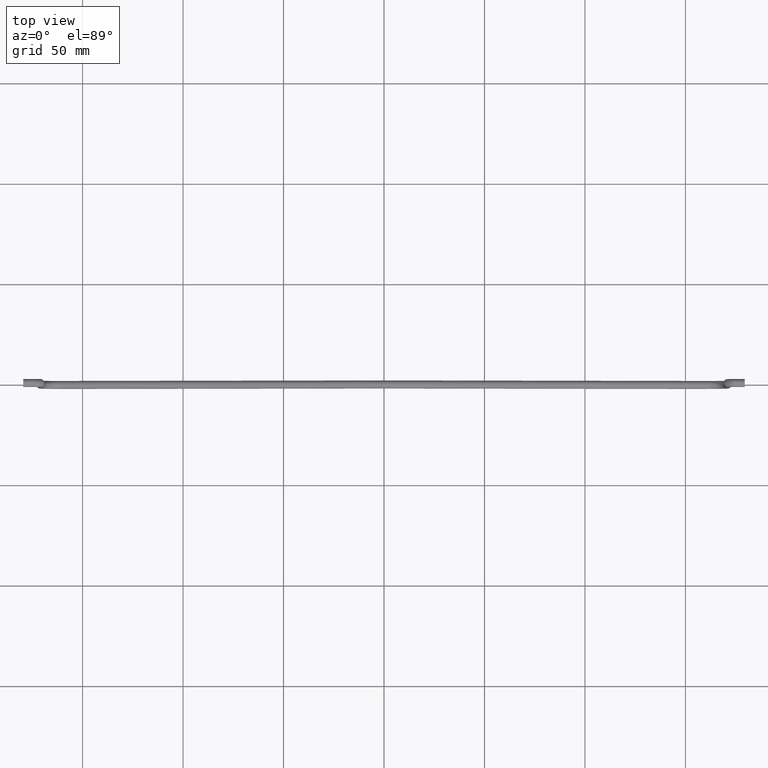
[diagram: clean part render]
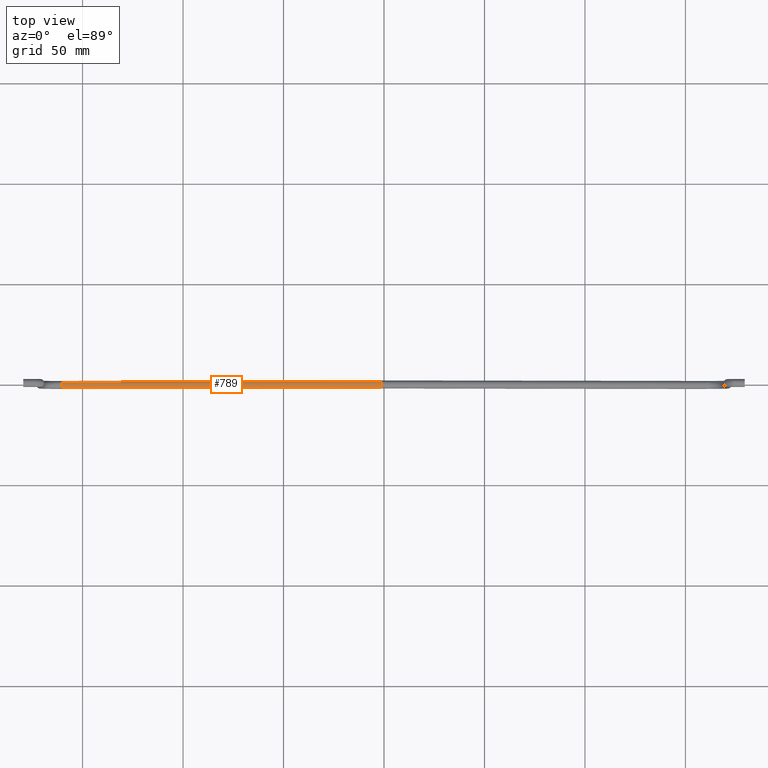
[diagram: same view with one face highlighted and labeled with its STEP entity id]
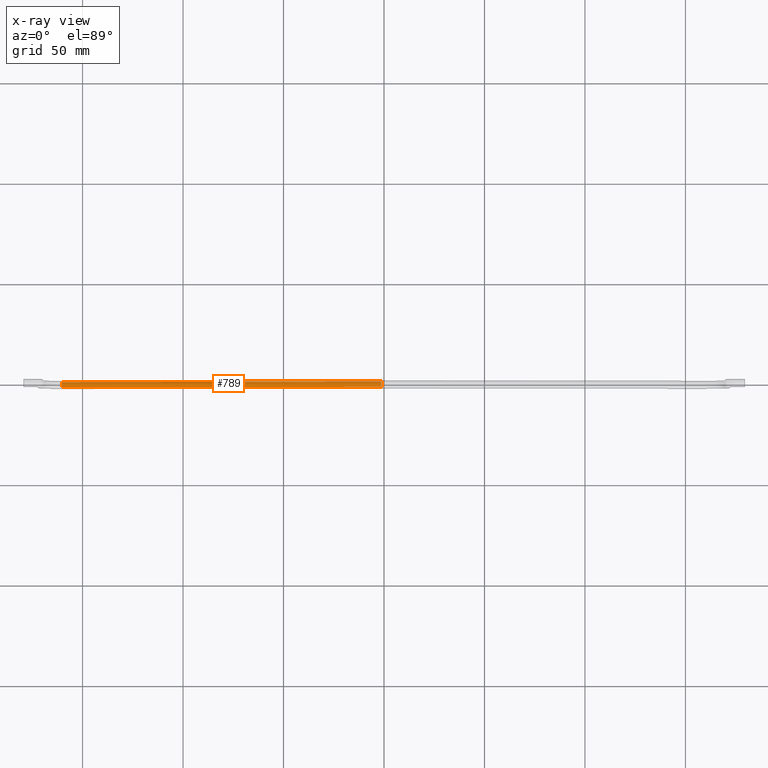
[diagram: x-ray of the same camera — body ghosted, the highlighted face saturated]
A machine part, top view. The second image highlights one B-rep face of the part: STEP entity #789.
The next image is the same camera in x-ray: the body ghosted, the highlighted face saturated — about 0% of this face is hidden behind the body in this view.
In plain terms, the highlighted face is a freeform B-spline surface patch.
Its self-contained STEP definition (entity closure, byte-faithful):
#626=CARTESIAN_POINT('',(-1.359891884382767,-1.216089247245802,-42.463963616226302));
#627=VERTEX_POINT('',#626);
#637=CARTESIAN_POINT('',(-160.266113874835410,-1.216088844176160,-56.380120268141070));
#638=VERTEX_POINT('',#637);
#639=CARTESIAN_POINT('',(-160.266113874835410,-1.216088844176160,-56.380120268141070));
#640=CARTESIAN_POINT('',(-1.359891884382767,-1.216089247245802,-42.463963616226302));
#641=QUASI_UNIFORM_CURVE('',1,(#639,#640),.UNSPECIFIED.,.F.,.U.);
#642=EDGE_CURVE('',#638,#627,#641,.T.);
#678=CARTESIAN_POINT('',(-160.256233778261390,1.351179953291413,-56.492939382871043));
#679=VERTEX_POINT('',#678);
#688=CARTESIAN_POINT('',(-1.350011833700060,1.351179739293265,-42.576782229102307));
#689=VERTEX_POINT('',#688);
#690=CARTESIAN_POINT('',(-160.256233778261390,1.351179953291413,-56.492939382871043));
#691=CARTESIAN_POINT('',(-1.350011833700060,1.351179739293265,-42.576782229102307));
#692=QUASI_UNIFORM_CURVE('',1,(#690,#691),.UNSPECIFIED.,.F.,.U.);
#693=EDGE_CURVE('',#679,#689,#692,.T.);
#737=CARTESIAN_POINT('',(-164.228889297063490,1.351180415231319,-56.840843729093230));
#738=CARTESIAN_POINT('',(-164.327709988123930,0.115016600529237,-55.712427118460099));
#739=CARTESIAN_POINT('',(-164.238769412726070,-1.216089083240858,-56.728024374066912));
#740=CARTESIAN_POINT('',(2.721960158748153,1.351180415231322,-42.220181324003910));
#741=CARTESIAN_POINT('',(2.623139467687645,0.115016600529239,-41.091764713370772));
#742=CARTESIAN_POINT('',(2.712080043085515,-1.216089083240856,-42.107361968977600));
#750=(BOUNDED_SURFACE()B_SPLINE_SURFACE(2,1,((#737,#740),(#738,#741),(#739,#742)),.UNSPECIFIED.,.F.,.F.,.U.)B_SPLINE_SURFACE_WITH_KNOTS((3,3),(2,2),(0.0,2.908876664709618),(0.0,167.589826371354290),.UNSPECIFIED.)GEOMETRIC_REPRESENTATION_ITEM()RATIONAL_B_SPLINE_SURFACE(((1.0,1.0),(0.742253967444162,0.742253967444162),(0.938140952186599,0.938140952186599)))REPRESENTATION_ITEM('')SURFACE());
#751=CARTESIAN_POINT('',(-1.395852024836619,2.216225E-015,-42.053340907661877));
#752=VERTEX_POINT('',#751);
#753=CARTESIAN_POINT('',(-1.359891884382767,-1.216089247245802,-42.463963616226302));
#754=CARTESIAN_POINT('',(-1.383125371724239,-0.870689175186538,-42.198664388851540));
#755=CARTESIAN_POINT('',(-1.395939333414586,-0.436009789457397,-42.052343946539693));
#756=CARTESIAN_POINT('',(-1.395852024836619,2.216225E-015,-42.053340907661877));
#757=B_SPLINE_CURVE_WITH_KNOTS('',3,(#753,#754,#755,#756),.UNSPECIFIED.,.F.,.U.,(4,4),(0.000000228029678,1.307281361257488),.UNSPECIFIED.);
#758=EDGE_CURVE('',#627,#752,#757,.T.);
#759=ORIENTED_EDGE('',*,*,#758,.T.);
#760=CARTESIAN_POINT('',(-1.395852024836619,2.216225E-015,-42.053340907661877));
#761=CARTESIAN_POINT('',(-1.395884600184785,0.278223656144074,-42.052968935323477));
#762=CARTESIAN_POINT('',(-1.386693950386315,0.772365287971288,-42.157915397288207));
#763=CARTESIAN_POINT('',(-1.362771323165924,1.191740455998857,-42.431083795889741));
#764=CARTESIAN_POINT('',(-1.350011833700060,1.351179739293265,-42.576782229102307));
#765=B_SPLINE_CURVE_WITH_KNOTS('',3,(#760,#761,#762,#763,#764),.UNSPECIFIED.,.F.,.U.,(4,1,4),(0.000000255722988,0.834536926172933,1.483661680793387),.UNSPECIFIED.);
#766=EDGE_CURVE('',#752,#689,#765,.T.);
#767=ORIENTED_EDGE('',*,*,#766,.T.);
#768=ORIENTED_EDGE('',*,*,#693,.F.);
#769=CARTESIAN_POINT('',(-160.302073987585800,2.920052E-016,-55.969497866183239));
#770=VERTEX_POINT('',#769);
#771=CARTESIAN_POINT('',(-160.302073987585800,2.920052E-016,-55.969497866183239));
#772=CARTESIAN_POINT('',(-160.302084100226890,0.216359876045550,-55.969382385030222));
#773=CARTESIAN_POINT('',(-160.295003514865610,0.710811544678743,-56.050234370532472));
#774=CARTESIAN_POINT('',(-160.272657286819790,1.146306502955919,-56.305402136690887));
#775=CARTESIAN_POINT('',(-160.256233778261390,1.351179953291413,-56.492939382871043));
#776=B_SPLINE_CURVE_WITH_KNOTS('',3,(#771,#772,#773,#774,#775),.UNSPECIFIED.,.F.,.U.,(4,1,4),(0.000000255723502,0.649125137376919,1.483661971124700),.UNSPECIFIED.);
#777=EDGE_CURVE('',#770,#679,#776,.T.);
#778=ORIENTED_EDGE('',*,*,#777,.F.);
#779=CARTESIAN_POINT('',(-160.266113874835410,-1.216088844176160,-56.380120268141070));
#780=CARTESIAN_POINT('',(-160.289347753831010,-0.870698431815120,-56.114816561611271));
#781=CARTESIAN_POINT('',(-160.302160218748900,-0.436002529696809,-55.968513207223609));
#782=CARTESIAN_POINT('',(-160.302073987585800,2.920052E-016,-55.969497866183239));
#783=B_SPLINE_CURVE_WITH_KNOTS('',3,(#779,#780,#781,#782),.UNSPECIFIED.,.F.,.U.,(4,4),(0.000000228029137,1.307280853635763),.UNSPECIFIED.);
#784=EDGE_CURVE('',#638,#770,#783,.T.);
#785=ORIENTED_EDGE('',*,*,#784,.F.);
#786=ORIENTED_EDGE('',*,*,#642,.T.);
#787=EDGE_LOOP('',(#759,#767,#768,#778,#785,#786));
#788=FACE_OUTER_BOUND('',#787,.T.);
#789=ADVANCED_FACE('',(#788),#750,.T.);